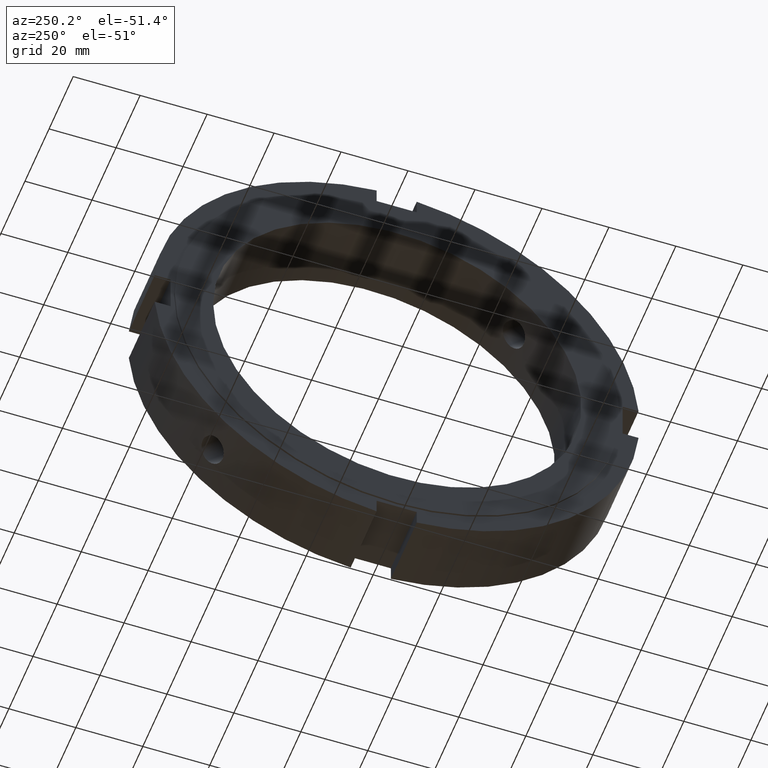
[diagram: clean part render]
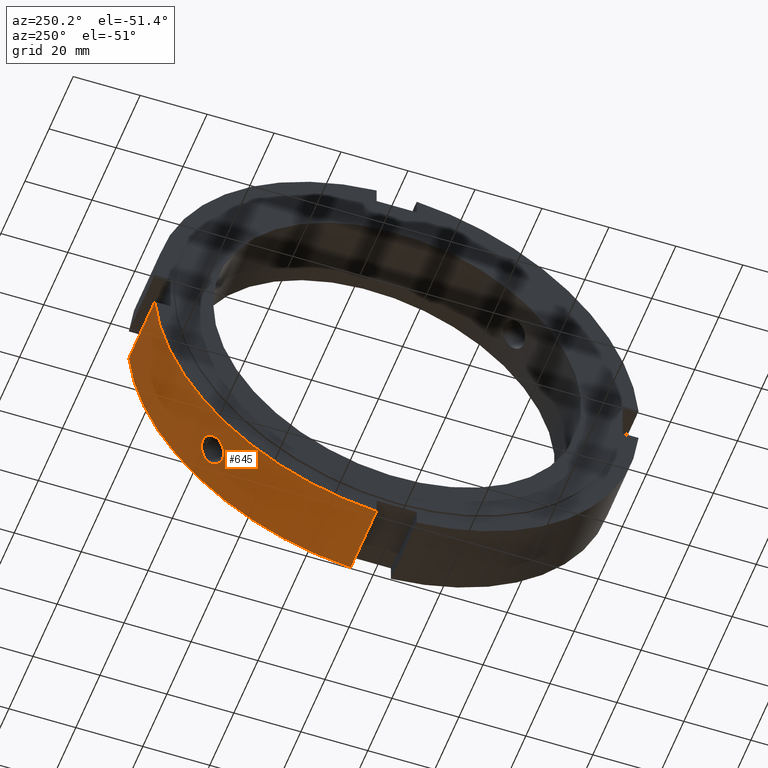
[diagram: same view with one face highlighted and labeled with its STEP entity id]
A machine part, auxiliary view. The second image highlights one B-rep face of the part: STEP entity #645.
In plain terms, the highlighted cylindrical surface (partial cylindrical patch) has radius 72.5 mm, axis along (1, 0, 0).
Its self-contained STEP definition (entity closure, byte-faithful):
#161=CARTESIAN_POINT('',(10.999999999999993,48.218274626385551,-54.141001025604083));
#162=VERTEX_POINT('',#161);
#163=CARTESIAN_POINT('',(10.999999999999989,48.218274626385558,-54.141001025604083));
#164=CARTESIAN_POINT('',(11.525980321831000,48.218274626385558,-54.141001025604083));
#165=CARTESIAN_POINT('',(12.086939726019164,48.297092108237074,-54.071126306085318));
#166=CARTESIAN_POINT('',(13.118741718952121,48.615488804088002,-53.785035599074490));
#167=CARTESIAN_POINT('',(13.589594241376023,48.854830580567139,-53.568591283369862));
#168=CARTESIAN_POINT('',(14.333132017821308,49.402084544023467,-53.064324039240525));
#169=CARTESIAN_POINT('',(14.655421560537087,49.746467991226844,-52.742821374034634));
#170=CARTESIAN_POINT('',(15.082858790318507,50.492196243177041,-52.029360966997260));
#171=CARTESIAN_POINT('',(15.187999999999992,50.893317523766981,-51.637165748282420));
#172=CARTESIAN_POINT('',(15.187999999999992,51.637165748282442,-50.893317523766974));
#173=CARTESIAN_POINT('',(15.082858790318500,52.029360966997274,-50.492196243177020));
#174=CARTESIAN_POINT('',(14.655421560537075,52.742821374034648,-49.746467991226815));
#175=CARTESIAN_POINT('',(14.333132017821315,53.064324039240553,-49.402084544023438));
#176=CARTESIAN_POINT('',(13.589594241376023,53.568591283369869,-48.854830580567103));
#177=CARTESIAN_POINT('',(13.118741718952101,53.785035599074490,-48.615488804088002));
#178=CARTESIAN_POINT('',(12.086939726019148,54.071126306085304,-48.297092108237088));
#179=CARTESIAN_POINT('',(11.525980321831000,54.141001025604069,-48.218274626385558));
#180=CARTESIAN_POINT('',(10.474019678168986,54.141001025604069,-48.218274626385558));
#181=CARTESIAN_POINT('',(9.913060273980838,54.071126306085304,-48.297092108237088));
#182=CARTESIAN_POINT('',(8.881258281047884,53.785035599074490,-48.615488804088002));
#183=CARTESIAN_POINT('',(8.410405758623959,53.568591283369869,-48.854830580567103));
#184=CARTESIAN_POINT('',(7.666867982178670,53.064324039240546,-49.402084544023438));
#185=CARTESIAN_POINT('',(7.344578439462913,52.742821374034648,-49.746467991226815));
#186=CARTESIAN_POINT('',(6.917141209681484,52.029360966997274,-50.492196243177020));
#187=CARTESIAN_POINT('',(6.811999999999994,51.637165748282435,-50.893317523766967));
#188=CARTESIAN_POINT('',(6.811999999999989,50.893317523766981,-51.637165748282420));
#189=CARTESIAN_POINT('',(6.917141209681472,50.492196243177041,-52.029360966997260));
#190=CARTESIAN_POINT('',(7.344578439462892,49.746467991226844,-52.742821374034634));
#191=CARTESIAN_POINT('',(7.666867982178676,49.402084544023467,-53.064324039240525));
#192=CARTESIAN_POINT('',(8.410405758623961,48.854830580567139,-53.568591283369862));
#193=CARTESIAN_POINT('',(8.881258281047863,48.615488804088002,-53.785035599074490));
#194=CARTESIAN_POINT('',(9.913060273980818,48.297092108237074,-54.071126306085318));
#195=CARTESIAN_POINT('',(10.474019678168982,48.218274626385558,-54.141001025604083));
#196=CARTESIAN_POINT('',(10.999999999999993,48.218274626385558,-54.141001025604083));
#197=B_SPLINE_CURVE_WITH_KNOTS('',3,(#163,#164,#165,#166,#167,#168,#169,#170,#171,#172,#173,#174,#175,#176,#177,#178,#179,#180,#181,#182,#183,#184,#185,#186,#187,#188,#189,#190,#191,#192,#193,#194,#195,#196),.UNSPECIFIED.,.T.,.U.,(4,2,2,2,2,2,2,2,2,2,2,2,2,2,2,2,4),(0.0,0.157794096549303,0.315588193098606,0.473382230217141,0.631176267335676,0.788970304454212,0.946764341572747,1.104558438122049,1.262352534671351,1.420146631220653,1.577940727769955,1.735734764888491,1.893528802007026,2.051322839125561,2.209116876244096,2.366910972793400,2.524705069342702),.UNSPECIFIED.);
#198=EDGE_CURVE('',#162,#162,#197,.T.);
#289=CARTESIAN_POINT('',(0.499999999999980,5.999999999999983,-72.251297566202922));
#290=VERTEX_POINT('',#289);
#299=CARTESIAN_POINT('',(21.999999999999986,5.999999999999984,-72.251297566202922));
#300=VERTEX_POINT('',#299);
#301=CARTESIAN_POINT('',(21.999999999999986,5.999999999999983,-72.251297566202922));
#302=DIRECTION('',(-1.0,0.0,0.0));
#303=VECTOR('',#302,21.500000000000007);
#304=LINE('',#301,#303);
#305=EDGE_CURVE('',#300,#290,#304,.T.);
#610=CARTESIAN_POINT('',(11.249999999999982,0.0,0.0));
#611=DIRECTION('',(1.0,0.0,0.0));
#612=DIRECTION('',(0.0,1.0,0.0));
#613=AXIS2_PLACEMENT_3D('',#610,#611,#612);
#614=CYLINDRICAL_SURFACE('',#613,72.500000000000000);
#615=ORIENTED_EDGE('',*,*,#305,.T.);
#616=CARTESIAN_POINT('',(0.499999999999980,72.251297566202922,-5.999999999999997));
#617=VERTEX_POINT('',#616);
#618=CARTESIAN_POINT('',(0.499999999999980,0.0,0.0));
#619=DIRECTION('',(1.0,0.0,0.0));
#620=DIRECTION('',(0.0,1.0,0.0));
#621=AXIS2_PLACEMENT_3D('',#618,#619,#620);
#622=CIRCLE('',#621,72.500000000000000);
#623=EDGE_CURVE('',#290,#617,#622,.T.);
#624=ORIENTED_EDGE('',*,*,#623,.T.);
#625=CARTESIAN_POINT('',(21.999999999999986,72.251297566202922,-5.999999999999996));
#626=VERTEX_POINT('',#625);
#627=CARTESIAN_POINT('',(0.499999999999980,72.251297566202922,-5.999999999999997));
#628=DIRECTION('',(1.0,0.0,0.0));
#629=VECTOR('',#628,21.500000000000007);
#630=LINE('',#627,#629);
#631=EDGE_CURVE('',#617,#626,#630,.T.);
#632=ORIENTED_EDGE('',*,*,#631,.T.);
#633=CARTESIAN_POINT('',(21.999999999999986,0.0,0.0));
#634=DIRECTION('',(1.0,0.0,0.0));
#635=DIRECTION('',(0.0,1.0,0.0));
#636=AXIS2_PLACEMENT_3D('',#633,#634,#635);
#637=CIRCLE('',#636,72.500000000000000);
#638=EDGE_CURVE('',#300,#626,#637,.T.);
#639=ORIENTED_EDGE('',*,*,#638,.F.);
#640=EDGE_LOOP('',(#615,#624,#632,#639));
#641=FACE_OUTER_BOUND('',#640,.T.);
#642=ORIENTED_EDGE('',*,*,#198,.T.);
#643=EDGE_LOOP('',(#642));
#644=FACE_BOUND('',#643,.T.);
#645=ADVANCED_FACE('',(#641,#644),#614,.T.);